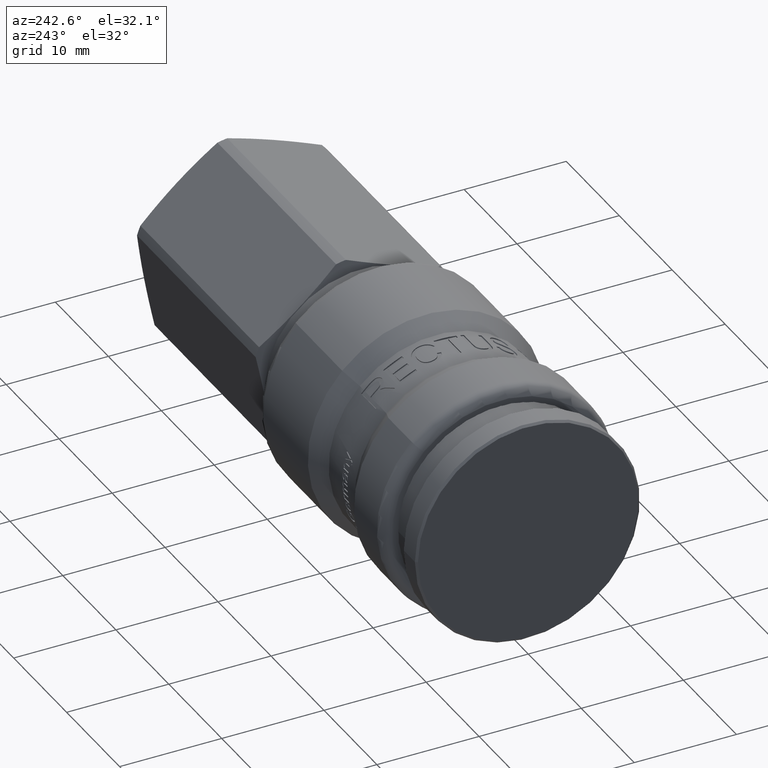
[diagram: clean part render]
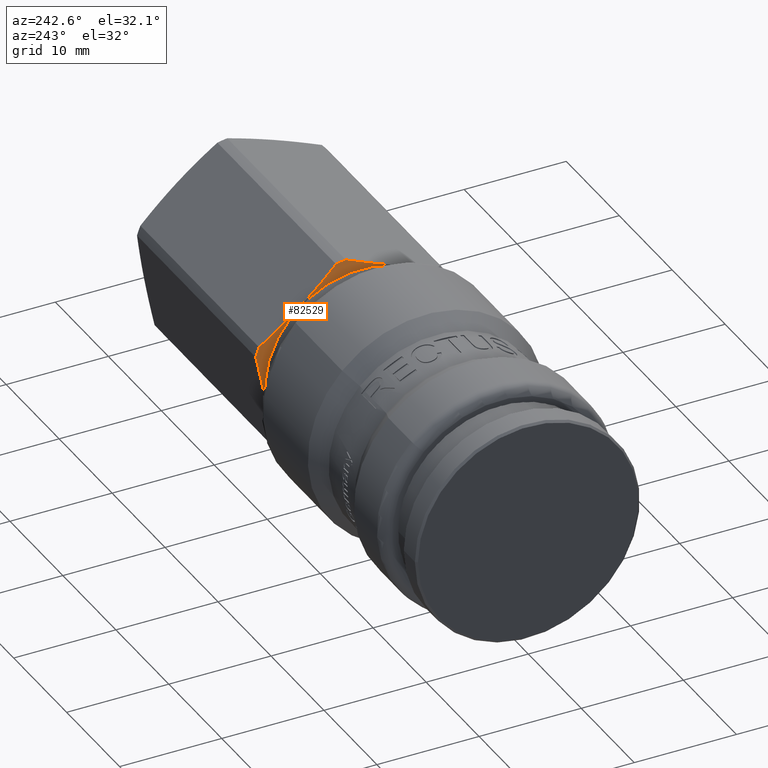
[diagram: same view with one face highlighted and labeled with its STEP entity id]
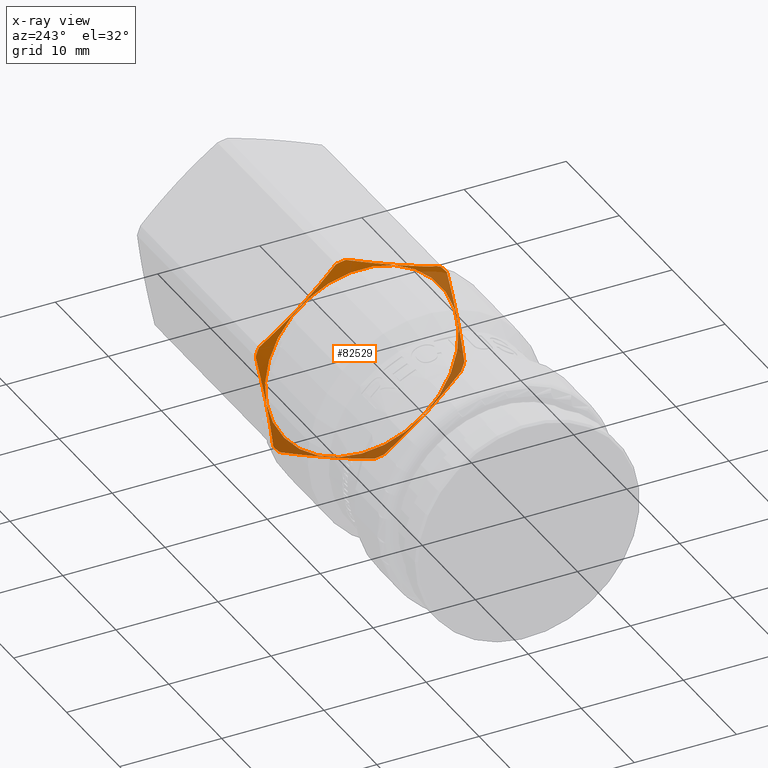
[diagram: x-ray of the same camera — body ghosted, the highlighted face saturated]
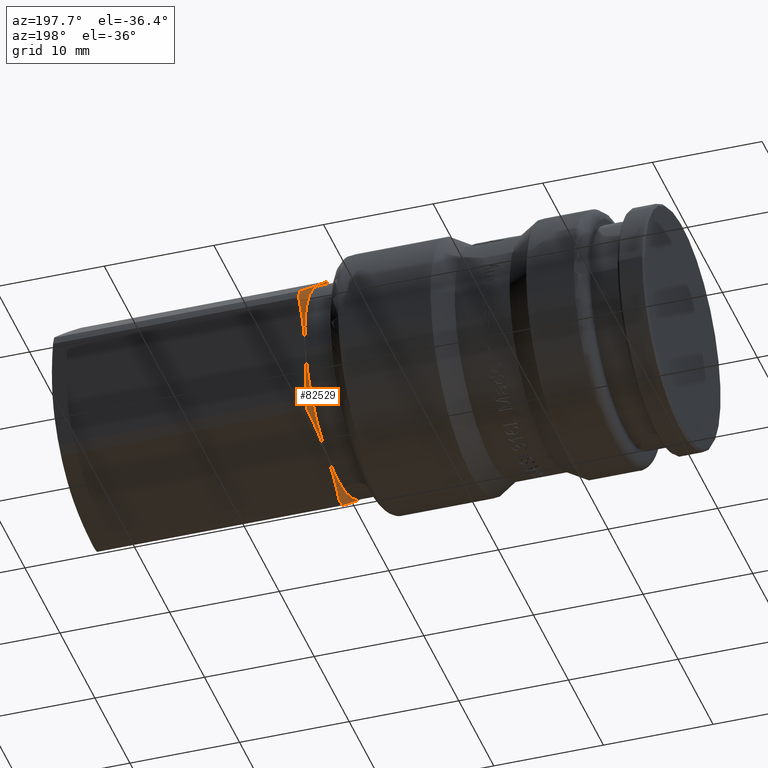
[diagram: same view with one face highlighted and labeled with its STEP entity id]
A machine part, auxiliary view. The second image highlights one B-rep face of the part: STEP entity #82529.
The next image is the same camera in x-ray: the body ghosted, the highlighted face saturated — about 53% of this face is hidden behind the body in this view.
A second angle (auxiliary view) of the same face is appended — the face is thin or edge-on in the first view.
In plain terms, the highlighted conical surface has half-angle 75 deg.
Its self-contained STEP definition (entity closure, byte-faithful):
#81894=CARTESIAN_POINT('',(31.449999999999996,9.329030554338495,-1.656747994179802));
#81895=VERTEX_POINT('',#81894);
#81896=CARTESIAN_POINT('',(31.449999999999996,4.935817E-016,-1.136453E-030));
#81897=DIRECTION('',(-1.0,2.075882E-017,-3.686571E-018));
#81898=DIRECTION('',(2.108363E-017,0.984594253756042,-0.174854669570428));
#81899=AXIS2_PLACEMENT_3D('',#81896,#81897,#81898);
#81900=CIRCLE('',#81899,9.475000000000000);
#81901=EDGE_CURVE('',#81895,#81895,#81900,.T.);
#81913=CARTESIAN_POINT('',(31.778237760728118,2.347721103637915,10.439262695206647));
#81914=VERTEX_POINT('',#81913);
#81921=CARTESIAN_POINT('',(31.778237760728118,1.390303858874956,10.609290983849835));
#81922=VERTEX_POINT('',#81921);
#81923=CARTESIAN_POINT('',(31.778237760728118,4.865529E-016,-1.120269E-030));
#81924=DIRECTION('',(-1.000000000000000,2.075882E-017,-3.686571E-018));
#81925=DIRECTION('',(2.108363E-017,0.984594253756042,-0.174854669570428));
#81926=AXIS2_PLACEMENT_3D('',#81923,#81924,#81925);
#81927=CIRCLE('',#81926,10.699999999999999);
#81928=EDGE_CURVE('',#81922,#81914,#81927,.T.);
#82016=CARTESIAN_POINT('',(31.778237760728118,8.492763578717678,-6.508683952690167));
#82017=VERTEX_POINT('',#82016);
#82024=CARTESIAN_POINT('',(31.778237760728118,10.214527242647124,3.186445230852041));
#82025=VERTEX_POINT('',#82024);
#82026=CARTESIAN_POINT('',(31.778237760728118,10.214527242647129,3.186445230852064));
#82027=CARTESIAN_POINT('',(31.171220150958924,9.353645410682400,-1.661119360919063));
#82028=CARTESIAN_POINT('',(31.778237760728118,8.492763578717673,-6.508683952690191));
#82036=(BOUNDED_CURVE()B_SPLINE_CURVE(2,(#82026,#82027,#82028),.UNSPECIFIED.,.F.,.U.)B_SPLINE_CURVE_WITH_KNOTS((3,3),(0.0,0.986780367628043),.UNSPECIFIED.)CURVE()GEOMETRIC_REPRESENTATION_ITEM()RATIONAL_B_SPLINE_CURVE((1.0,1.126315789473665,1.0))REPRESENTATION_ITEM(''));
#82037=EDGE_CURVE('',#82025,#82017,#82036,.T.);
#82306=CARTESIAN_POINT('',(31.778237760728118,-7.866806139009205,7.252817464354600));
#82307=VERTEX_POINT('',#82306);
#82314=CARTESIAN_POINT('',(31.778237760728118,-8.492763578717678,6.508683952690166));
#82315=VERTEX_POINT('',#82314);
#82316=CARTESIAN_POINT('',(31.778237760728118,4.865529E-016,-1.120269E-030));
#82317=DIRECTION('',(-1.000000000000000,2.075882E-017,-3.686571E-018));
#82318=DIRECTION('',(2.108363E-017,0.984594253756042,-0.174854669570428));
#82319=AXIS2_PLACEMENT_3D('',#82316,#82317,#82318);
#82320=CIRCLE('',#82319,10.699999999999999);
#82321=EDGE_CURVE('',#82315,#82307,#82320,.T.);
#82338=CARTESIAN_POINT('',(31.778237760728118,-10.214527242647124,-3.186445230852042));
#82339=VERTEX_POINT('',#82338);
#82346=CARTESIAN_POINT('',(31.778237760728118,-9.883067437592635,-4.100607031159674));
#82347=VERTEX_POINT('',#82346);
#82348=CARTESIAN_POINT('',(31.778237760728118,4.865529E-016,-1.120269E-030));
#82349=DIRECTION('',(-1.000000000000000,2.075882E-017,-3.686571E-018));
#82350=DIRECTION('',(2.108363E-017,0.984594253756042,-0.174854669570428));
#82351=AXIS2_PLACEMENT_3D('',#82348,#82349,#82350);
#82352=CIRCLE('',#82351,10.699999999999999);
#82353=EDGE_CURVE('',#82347,#82339,#82352,.T.);
#82370=CARTESIAN_POINT('',(31.778237760728118,-2.347721103637925,-10.439262695206644));
#82371=VERTEX_POINT('',#82370);
#82378=CARTESIAN_POINT('',(31.778237760728118,-1.390303858874957,-10.609290983849835));
#82379=VERTEX_POINT('',#82378);
#82380=CARTESIAN_POINT('',(31.778237760728118,4.865529E-016,-1.120269E-030));
#82381=DIRECTION('',(-1.000000000000000,2.075882E-017,-3.686571E-018));
#82382=DIRECTION('',(2.108363E-017,0.984594253756042,-0.174854669570428));
#82383=AXIS2_PLACEMENT_3D('',#82380,#82381,#82382);
#82384=CIRCLE('',#82383,10.699999999999999);
#82385=EDGE_CURVE('',#82379,#82371,#82384,.T.);
#82402=CARTESIAN_POINT('',(31.778237760728118,7.866806139009201,-7.252817464354604));
#82403=VERTEX_POINT('',#82402);
#82410=CARTESIAN_POINT('',(31.778237760728118,4.865529E-016,-1.120269E-030));
#82411=DIRECTION('',(-1.000000000000000,2.075882E-017,-3.686571E-018));
#82412=DIRECTION('',(2.108363E-017,0.984594253756042,-0.174854669570428));
#82413=AXIS2_PLACEMENT_3D('',#82410,#82411,#82412);
#82414=CIRCLE('',#82413,10.699999999999999);
#82415=EDGE_CURVE('',#82017,#82403,#82414,.T.);
#82427=CARTESIAN_POINT('',(31.778237760728118,9.883067437592635,4.100607031159675));
#82428=VERTEX_POINT('',#82427);
#82437=CARTESIAN_POINT('',(31.778237760728118,4.865529E-016,-1.120269E-030));
#82438=DIRECTION('',(-1.000000000000000,2.075882E-017,-3.686571E-018));
#82439=DIRECTION('',(2.108363E-017,0.984594253756042,-0.174854669570428));
#82440=AXIS2_PLACEMENT_3D('',#82437,#82438,#82439);
#82441=CIRCLE('',#82440,10.699999999999999);
#82442=EDGE_CURVE('',#82428,#82025,#82441,.T.);
#82447=CARTESIAN_POINT('',(31.614118880364053,4.900673E-016,-1.128361E-030));
#82448=DIRECTION('',(1.0,-2.141352E-017,4.930381E-032));
#82449=DIRECTION('',(2.108363E-017,0.984594253756042,-0.174854669570428));
#82450=AXIS2_PLACEMENT_3D('',#82447,#82448,#82449);
#82451=CONICAL_SURFACE('',#82450,10.087500000000000,75.000000000000128);
#82452=ORIENTED_EDGE('',*,*,#81901,.F.);
#82453=EDGE_LOOP('',(#82452));
#82454=FACE_OUTER_BOUND('',#82453,.T.);
#82455=CARTESIAN_POINT('',(31.778237760728118,2.347721103637900,10.439262695206663));
#82456=CARTESIAN_POINT('',(31.171220150958924,6.115394270615279,7.269934863183162));
#82457=CARTESIAN_POINT('',(31.778237760728118,9.883067437592652,4.100607031159662));
#82465=(BOUNDED_CURVE()B_SPLINE_CURVE(2,(#82455,#82456,#82457),.UNSPECIFIED.,.F.,.U.)B_SPLINE_CURVE_WITH_KNOTS((3,3),(0.0,0.986780367628043),.UNSPECIFIED.)CURVE()GEOMETRIC_REPRESENTATION_ITEM()RATIONAL_B_SPLINE_CURVE((1.0,1.126315789473665,1.0))REPRESENTATION_ITEM(''));
#82466=EDGE_CURVE('',#81914,#82428,#82465,.T.);
#82467=ORIENTED_EDGE('',*,*,#82466,.T.);
#82468=ORIENTED_EDGE('',*,*,#82442,.T.);
#82469=ORIENTED_EDGE('',*,*,#82037,.T.);
#82470=ORIENTED_EDGE('',*,*,#82415,.T.);
#82471=CARTESIAN_POINT('',(31.778237760728118,7.866806139009222,-7.252817464354596));
#82472=CARTESIAN_POINT('',(31.171220150958924,3.238251140067114,-8.931054224102223));
#82473=CARTESIAN_POINT('',(31.778237760728118,-1.390303858874979,-10.609290983849842));
#82481=(BOUNDED_CURVE()B_SPLINE_CURVE(2,(#82471,#82472,#82473),.UNSPECIFIED.,.F.,.U.)B_SPLINE_CURVE_WITH_KNOTS((3,3),(0.0,0.986780367628043),.UNSPECIFIED.)CURVE()GEOMETRIC_REPRESENTATION_ITEM()RATIONAL_B_SPLINE_CURVE((1.0,1.126315789473665,1.0))REPRESENTATION_ITEM(''));
#82482=EDGE_CURVE('',#82403,#82379,#82481,.T.);
#82483=ORIENTED_EDGE('',*,*,#82482,.T.);
#82484=ORIENTED_EDGE('',*,*,#82385,.T.);
#82485=CARTESIAN_POINT('',(31.778237760728118,-2.347721103637910,-10.439262695206660));
#82486=CARTESIAN_POINT('',(31.171220150958924,-6.115394270615289,-7.269934863183153));
#82487=CARTESIAN_POINT('',(31.778237760728118,-9.883067437592651,-4.100607031159659));
#82495=(BOUNDED_CURVE()B_SPLINE_CURVE(2,(#82485,#82486,#82487),.UNSPECIFIED.,.F.,.U.)B_SPLINE_CURVE_WITH_KNOTS((3,3),(0.0,0.986780367628042),.UNSPECIFIED.)CURVE()GEOMETRIC_REPRESENTATION_ITEM()RATIONAL_B_SPLINE_CURVE((1.0,1.126315789473665,1.0))REPRESENTATION_ITEM(''));
#82496=EDGE_CURVE('',#82371,#82347,#82495,.T.);
#82497=ORIENTED_EDGE('',*,*,#82496,.T.);
#82498=ORIENTED_EDGE('',*,*,#82353,.T.);
#82499=CARTESIAN_POINT('',(31.778237760728118,-10.214527242647129,-3.186445230852063));
#82500=CARTESIAN_POINT('',(31.171220150958924,-9.353645410682402,1.661119360919061));
#82501=CARTESIAN_POINT('',(31.778237760728118,-8.492763578717677,6.508683952690186));
#82509=(BOUNDED_CURVE()B_SPLINE_CURVE(2,(#82499,#82500,#82501),.UNSPECIFIED.,.F.,.U.)B_SPLINE_CURVE_WITH_KNOTS((3,3),(0.0,0.986780367628042),.UNSPECIFIED.)CURVE()GEOMETRIC_REPRESENTATION_ITEM()RATIONAL_B_SPLINE_CURVE((1.0,1.126315789473665,1.0))REPRESENTATION_ITEM(''));
#82510=EDGE_CURVE('',#82339,#82315,#82509,.T.);
#82511=ORIENTED_EDGE('',*,*,#82510,.T.);
#82512=ORIENTED_EDGE('',*,*,#82321,.T.);
#82513=CARTESIAN_POINT('',(31.778237760728118,-7.866806139009226,7.252817464354592));
#82514=CARTESIAN_POINT('',(31.171220150958924,-3.238251140067117,8.931054224102221));
#82515=CARTESIAN_POINT('',(31.778237760728118,1.390303858874975,10.609290983849842));
#82523=(BOUNDED_CURVE()B_SPLINE_CURVE(2,(#82513,#82514,#82515),.UNSPECIFIED.,.F.,.U.)B_SPLINE_CURVE_WITH_KNOTS((3,3),(0.0,0.986780367628043),.UNSPECIFIED.)CURVE()GEOMETRIC_REPRESENTATION_ITEM()RATIONAL_B_SPLINE_CURVE((1.0,1.126315789473665,1.0))REPRESENTATION_ITEM(''));
#82524=EDGE_CURVE('',#82307,#81922,#82523,.T.);
#82525=ORIENTED_EDGE('',*,*,#82524,.T.);
#82526=ORIENTED_EDGE('',*,*,#81928,.T.);
#82527=EDGE_LOOP('',(#82467,#82468,#82469,#82470,#82483,#82484,#82497,#82498,#82511,#82512,#82525,#82526));
#82528=FACE_BOUND('',#82527,.T.);
#82529=ADVANCED_FACE('',(#82454,#82528),#82451,.T.);